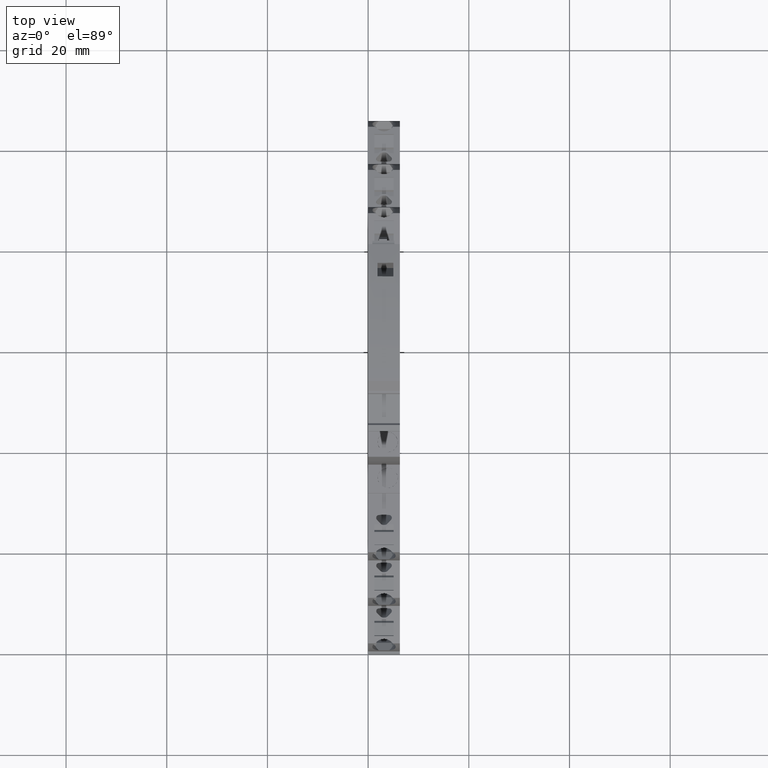
[diagram: clean part render]
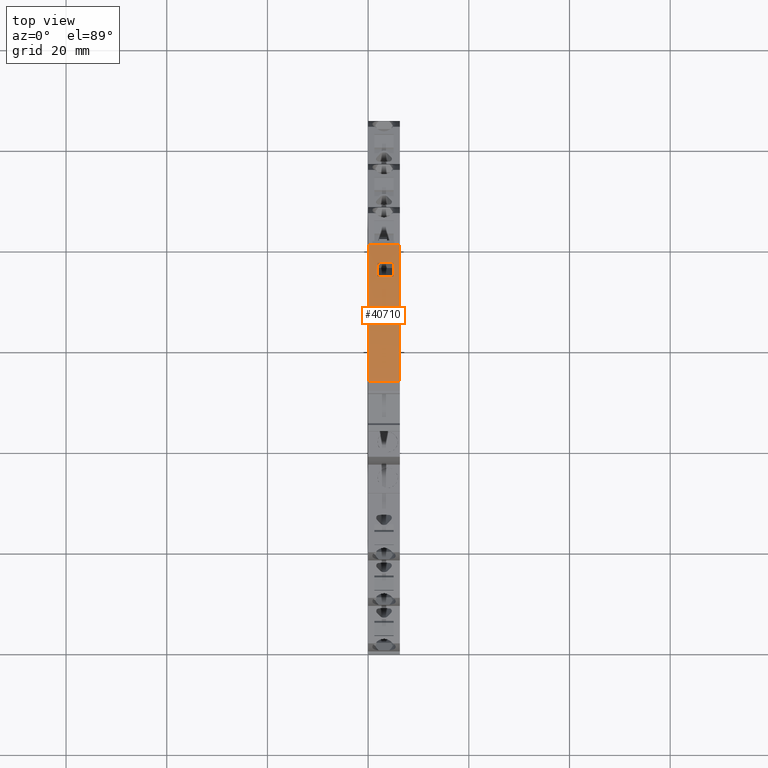
[diagram: same view with one face highlighted and labeled with its STEP entity id]
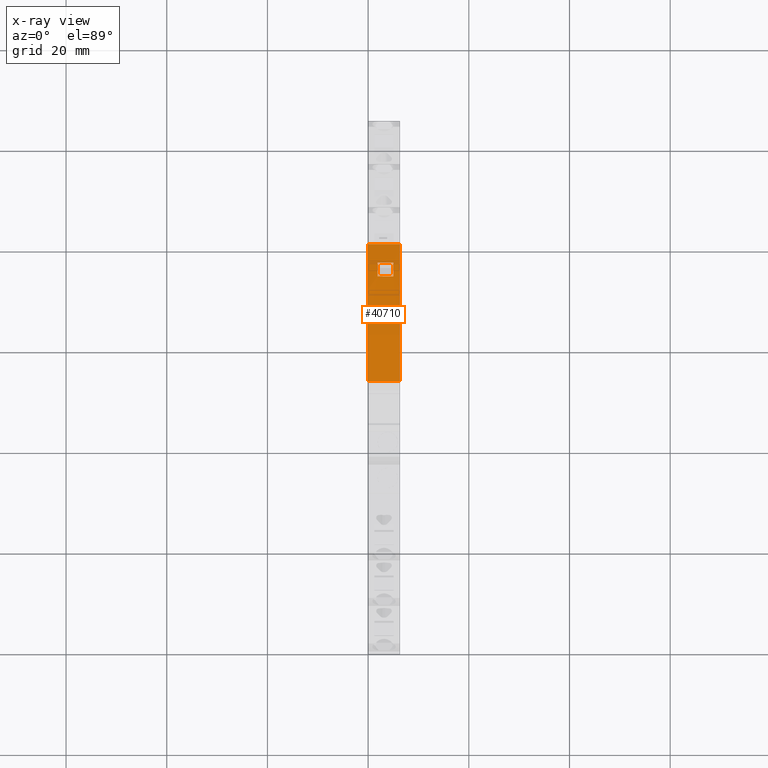
[diagram: x-ray of the same camera — body ghosted, the highlighted face saturated]
A machine part, top view. The second image highlights one B-rep face of the part: STEP entity #40710.
The next image is the same camera in x-ray: the body ghosted, the highlighted face saturated — about 0% of this face is hidden behind the body in this view.
In plain terms, the highlighted cylindrical surface (partial cylindrical patch) has radius 100 mm, axis along (-1, 0, 0).
Its self-contained STEP definition (entity closure, byte-faithful):
#290=CARTESIAN_POINT('',(3.78649011320283,88.5895615312616,
9.776066782877E-8));
#300=VERTEX_POINT('',#290);
#350=CARTESIAN_POINT('',(-23.5582147547322,-7.59914422822726,
-8.38583772216959E-9));
#360=DIRECTION('',(4.25831752161686E-18,1.10352358519E-9,-1.));
#370=DIRECTION('',(1.,0.,4.25831752161686E-18));
#380=AXIS2_PLACEMENT_3D('',#350,#360,#370);
#390=CIRCLE('',#380,100.);
#400=CARTESIAN_POINT('',(-23.4620154295484,92.4008095002112,
1.01966469735481E-7));
#410=VERTEX_POINT('',#400);
#420=EDGE_CURVE('',#410,#300,#390,.T.);
#31880=CARTESIAN_POINT('',(-23.4620154295484,92.400809493259,
6.30000012500318));
#31890=VERTEX_POINT('',#31880);
#31920=CARTESIAN_POINT('',(-23.5582147547322,-7.59914423517946,
6.30000001465087));
#31930=DIRECTION('',(-4.25831752161686E-18,-1.10352358519E-9,1.));
#31940=DIRECTION('',(1.,0.,4.25831752161686E-18));
#31950=AXIS2_PLACEMENT_3D('',#31920,#31930,#31940);
#31960=CIRCLE('',#31950,100.);
#31970=CARTESIAN_POINT('',(3.78649011320283,88.5895615243094,
6.30000012079738));
#31980=VERTEX_POINT('',#31970);
#31990=EDGE_CURVE('',#31980,#31890,#31960,.T.);
#39390=CARTESIAN_POINT('',(-23.4620154295483,92.4008095002112,
1.01966469735481E-7));
#39400=DIRECTION('',(4.25831752161686E-18,1.10352358519E-9,-1.));
#39410=VECTOR('',#39400,1.);
#39420=LINE('',#39390,#39410);
#39430=EDGE_CURVE('',#31890,#410,#39420,.T.);
#39870=CARTESIAN_POINT('',(-23.5582147547322,-7.59914422822726,
-8.38583772216957E-9));
#39880=DIRECTION('',(4.25831752161686E-18,1.10352358519E-9,-1.));
#39890=DIRECTION('',(1.,0.,4.25831752161686E-18));
#39900=AXIS2_PLACEMENT_3D('',#39870,#39880,#39890);
#39910=CYLINDRICAL_SURFACE('',#39900,100.);
#39920=CARTESIAN_POINT('',(-2.08881951211755,86.991326293044,
5.32500027369415));
#39930=DIRECTION('',(-0.98477025453965,-0.173641565676473,
-0.00872653673207711));
#39940=DIRECTION('',(0.173648177666978,-0.9848077530122,
2.19027931940367E-10));
#39950=AXIS2_PLACEMENT_3D('',#39920,#39930,#39940);
#39960=PLANE('',#39950);
#39970=CARTESIAN_POINT('',(-2.62106364968698,90.1844725140739,
1.85000035641818));
#39980=CARTESIAN_POINT('',(-2.62348106012823,90.1849901228621,
2.11250031092473));
#39990=CARTESIAN_POINT('',(-2.62589845339257,90.1855076342176,
2.37500026578198));
#40000=CARTESIAN_POINT('',(-2.62831582948155,90.1860250481491,
2.63750022098977));
#40010=CARTESIAN_POINT('',(-2.63073320557052,90.1865424620806,
2.90000017619757));
#40020=CARTESIAN_POINT('',(-2.63315056448414,90.1870597785882,
3.1625001317559));
#40030=CARTESIAN_POINT('',(-2.63556790622394,90.1875769976806,
3.42500008766464));
#40040=CARTESIAN_POINT('',(-2.63798524796374,90.1880942167731,
3.68750004357338));
#40050=CARTESIAN_POINT('',(-2.64040257252974,90.1886113384504,
3.94999999983252));
#40060=CARTESIAN_POINT('',(-2.64281987992346,90.1891283627213,
4.21249995644192));
#40070=CARTESIAN_POINT('',(-2.64523718731719,90.1896453869923,
4.47499991305132));
#40080=CARTESIAN_POINT('',(-2.64765447753866,90.1901623138569,
4.73749987001099));
#40090=CARTESIAN_POINT('',(-2.65007175058941,90.1906791433239,
4.99999982732075));
#40100=B_SPLINE_CURVE_WITH_KNOTS('',3,(#39970,#39980,#39990,#40000,
#40010,#40020,#40030,#40040,#40050,#40060,#40070,#40080,#40090),
.UNSPECIFIED.,.F.,.F.,(4,3,3,3,4),(0.,0.787534787278701,1.57506957455947
,2.36260436184207,3.1501391491263),.UNSPECIFIED.);
#40110=SURFACE_CURVE('',#40100,(#39910,#39960),.CURVE_3D.);
#40120=CARTESIAN_POINT('',(-2.62106364968701,90.184472514074,
1.85000039716864));
#40130=VERTEX_POINT('',#40120);
#40140=CARTESIAN_POINT('',(-2.65007175058941,90.1906791433239,
4.99999982732076));
#40150=VERTEX_POINT('',#40140);
#40160=EDGE_CURVE('',#40130,#40150,#40110,.T.);
#40170=ORIENTED_EDGE('',*,*,#40160,.F.);
#40180=CARTESIAN_POINT('',(-23.5582147547322,-7.59914423374488,
4.99999982602747));
#40190=DIRECTION('',(4.93550720560506E-18,1.1035235883573E-9,-1.));
#40200=DIRECTION('',(0.209081430041447,0.977898233770684,
1.07913376901081E-9));
#40210=AXIS2_PLACEMENT_3D('',#40180,#40190,#40200);
#40220=CIRCLE('',#40210,100.);
#40230=CARTESIAN_POINT('',(0.071708723091932,89.5688891745328,
4.99999987174273));
#40240=VERTEX_POINT('',#40230);
#40250=EDGE_CURVE('',#40150,#40240,#40220,.T.);
#40260=ORIENTED_EDGE('',*,*,#40250,.F.);
#40270=CARTESIAN_POINT('',(-0.150951756281692,86.9913261006448,
5.32500027612416));
#40280=DIRECTION('',(0.996156766061096,-0.0871524241240942,
-0.00872653424861058));
#40290=DIRECTION('',(0.0871557427477231,0.99619469809174,
1.09931900276339E-10));
#40300=AXIS2_PLACEMENT_3D('',#40270,#40280,#40290);
#40310=PLANE('',#40300);
#40320=CARTESIAN_POINT('',(0.0717087230919427,89.5688891745328,
4.99999987174273));
#40330=CARTESIAN_POINT('',(0.0694570765957392,89.5694367441469,
4.73749990944935));
#40340=CARTESIAN_POINT('',(0.0672054229974241,89.5699842325944,
4.47499994704775));
#40350=CARTESIAN_POINT('',(0.0649537622972448,89.5705316398779,
4.21249998453799));
#40360=CARTESIAN_POINT('',(0.0627021015970655,89.5710790471615,
3.95000002202822));
#40370=CARTESIAN_POINT('',(0.0604504337950154,89.571626373281,
3.68750005941032));
#40380=CARTESIAN_POINT('',(0.0581987588913128,89.5721736182392,
3.42500009668433));
#40390=CARTESIAN_POINT('',(0.0559470839876103,89.5727208631974,
3.16250013395834));
#40400=CARTESIAN_POINT('',(0.0536954019822605,89.5732680269941,
2.90000017112428));
#40410=CARTESIAN_POINT('',(0.0514437128754871,89.5738151096321,
2.63750020818222));
#40420=CARTESIAN_POINT('',(0.0491920237687138,89.5743621922701,
2.37500024524016));
#40430=CARTESIAN_POINT('',(0.0469403275605165,89.5749091937492,
2.11250028219011));
#40440=CARTESIAN_POINT('',(0.0446886242511245,89.5754561140721,
1.85000031903213));
#40450=B_SPLINE_CURVE_WITH_KNOTS('',3,(#40320,#40330,#40340,#40350,
#40360,#40370,#40380,#40390,#40400,#40410,#40420,#40430,#40440),
.UNSPECIFIED.,.F.,.F.,(4,3,3,3,4),(0.,0.787530570540102,1.5750611410791,
2.36259171161685,3.15012228215319),.UNSPECIFIED.);
#40460=SURFACE_CURVE('',#40450,(#39910,#40310),.CURVE_3D.);
#40470=CARTESIAN_POINT('',(0.0446886242511404,89.5754561140721,
1.85000039649658));
#40480=VERTEX_POINT('',#40470);
#40490=EDGE_CURVE('',#40240,#40480,#40460,.T.);
#40500=ORIENTED_EDGE('',*,*,#40490,.F.);
#40510=CARTESIAN_POINT('',(-23.5582147547322,-7.59914423026878,
1.85000028926211));
#40520=DIRECTION('',(-4.42168000572937E-18,-1.10352358586257E-9,1.));
#40530=DIRECTION('',(0.236029033789833,0.971746003443409,
1.07234463531114E-9));
#40540=AXIS2_PLACEMENT_3D('',#40510,#40520,#40530);
#40550=CIRCLE('',#40540,100.);
#40560=EDGE_CURVE('',#40480,#40130,#40550,.T.);
#40570=ORIENTED_EDGE('',*,*,#40560,.F.);
#40580=EDGE_LOOP('',(#40570,#40500,#40260,#40170));
#40590=FACE_BOUND('',#40580,.T.);
#40600=CARTESIAN_POINT('',(3.78649011320283,88.5895615312616,
9.77606678287701E-8));
#40610=DIRECTION('',(4.25831752161686E-18,1.10352358519E-9,-1.));
#40620=VECTOR('',#40610,1.);
#40630=LINE('',#40600,#40620);
#40640=EDGE_CURVE('',#31980,#300,#40630,.T.);
#40650=ORIENTED_EDGE('',*,*,#40640,.T.);
#40660=ORIENTED_EDGE('',*,*,#31990,.F.);
#40670=ORIENTED_EDGE('',*,*,#39430,.F.);
#40680=ORIENTED_EDGE('',*,*,#420,.F.);
#40690=EDGE_LOOP('',(#40680,#40670,#40660,#40650));
#40700=FACE_OUTER_BOUND('',#40690,.T.);
#40710=ADVANCED_FACE('',(#40590,#40700),#39910,.T.);